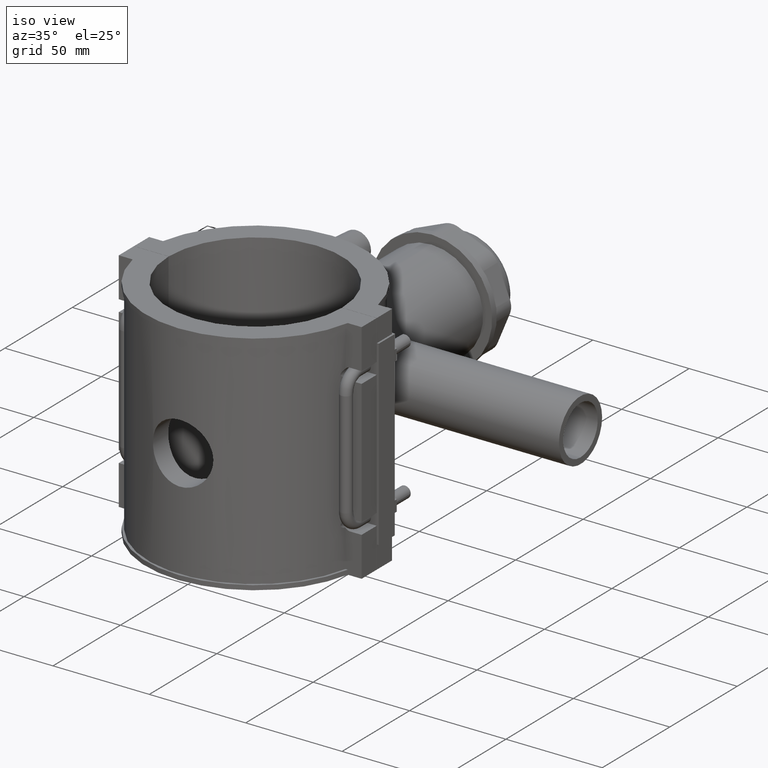
[diagram: clean part render]
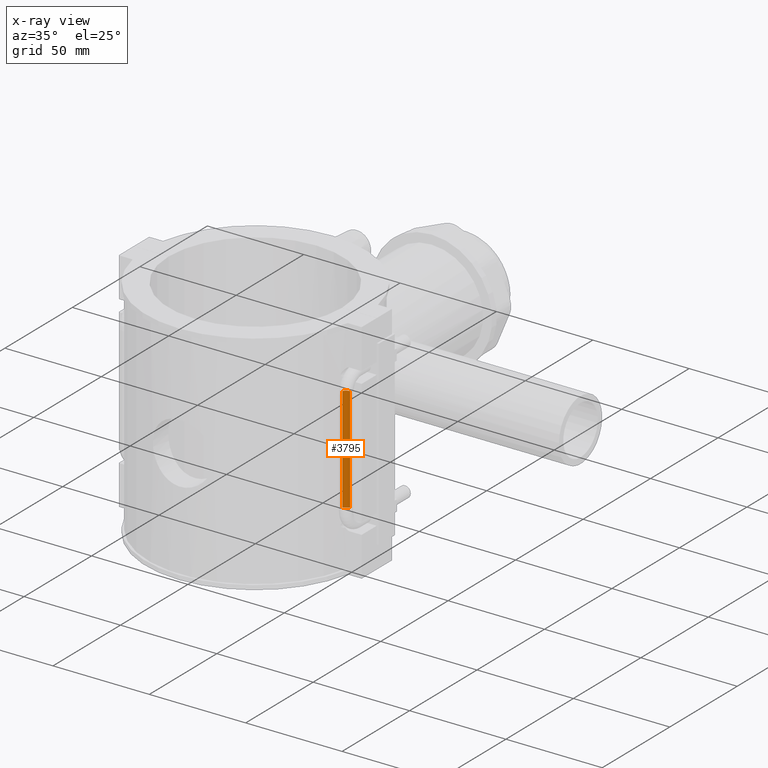
[diagram: x-ray — body ghosted, one internal face saturated and labeled with its STEP entity id]
A machine part, iso view, then the same camera in x-ray: the body is ghosted and one INTERNAL B-rep face — a face not visible from any outside direction — is saturated and labeled: STEP entity #3795.
In plain terms, the highlighted cylindrical surface (edge-blend (fillet) strip) has radius 3 mm, axis along (0, 0, -1).
Its self-contained STEP definition (entity closure, byte-faithful):
#302=LINE('',#7945,#601);
#303=LINE('',#7948,#602);
#601=VECTOR('',#4972,54.7999999999999);
#602=VECTOR('',#4975,54.7999999999999);
#890=CIRCLE('',#4107,3.);
#891=CIRCLE('',#4110,3.);
#1146=FACE_OUTER_BOUND('',#1415,.T.);
#1415=EDGE_LOOP('',(#3358,#3359,#3360,#3361));
#1878=VERTEX_POINT('',#7797);
#1886=VERTEX_POINT('',#7863);
#1893=VERTEX_POINT('',#7928);
#1894=VERTEX_POINT('',#7947);
#2399=EDGE_CURVE('',#1893,#1886,#890,.T.);
#2400=EDGE_CURVE('',#1886,#1878,#302,.T.);
#2401=EDGE_CURVE('',#1893,#1894,#303,.T.);
#2402=EDGE_CURVE('',#1894,#1878,#891,.T.);
#3358=ORIENTED_EDGE('',*,*,#2401,.F.);
#3359=ORIENTED_EDGE('',*,*,#2399,.T.);
#3360=ORIENTED_EDGE('',*,*,#2400,.T.);
#3361=ORIENTED_EDGE('',*,*,#2402,.F.);
#3595=CYLINDRICAL_SURFACE('',#4109,3.);
#3795=ADVANCED_FACE('',(#1146),#3595,.T.);
#4107=AXIS2_PLACEMENT_3D('',#7943,#4968,#4969);
#4109=AXIS2_PLACEMENT_3D('',#7946,#4973,#4974);
#4110=AXIS2_PLACEMENT_3D('',#7949,#4976,#4977);
#4968=DIRECTION('center_axis',(0.,-6.12323399573677E-17,-1.));
#4969=DIRECTION('ref_axis',(-1.,0.,0.));
#4972=DIRECTION('',(0.,0.,-1.));
#4973=DIRECTION('center_axis',(0.,0.,-1.));
#4974=DIRECTION('ref_axis',(-1.,0.,0.));
#4975=DIRECTION('',(0.,0.,-1.));
#4976=DIRECTION('center_axis',(0.,-6.12323399573677E-17,-1.));
#4977=DIRECTION('ref_axis',(-1.,0.,0.));
#7797=CARTESIAN_POINT('',(57.,-11.25,-27.4));
#7863=CARTESIAN_POINT('',(57.,-11.25,27.3999999999999));
#7928=CARTESIAN_POINT('',(54.2550567814544,-13.0395097162878,27.3999999999999));
#7943=CARTESIAN_POINT('Origin',(57.,-14.2499999999994,27.3999999999999));
#7945=CARTESIAN_POINT('',(57.,-11.25,27.3999999999999));
#7946=CARTESIAN_POINT('Origin',(57.,-14.2499999999994,27.3999999999999));
#7947=CARTESIAN_POINT('',(54.2550567814544,-13.0395097162878,-27.4));
#7948=CARTESIAN_POINT('',(54.2550567814544,-13.0395097162878,27.3999999999999));
#7949=CARTESIAN_POINT('Origin',(57.,-14.2499999999994,-27.4));